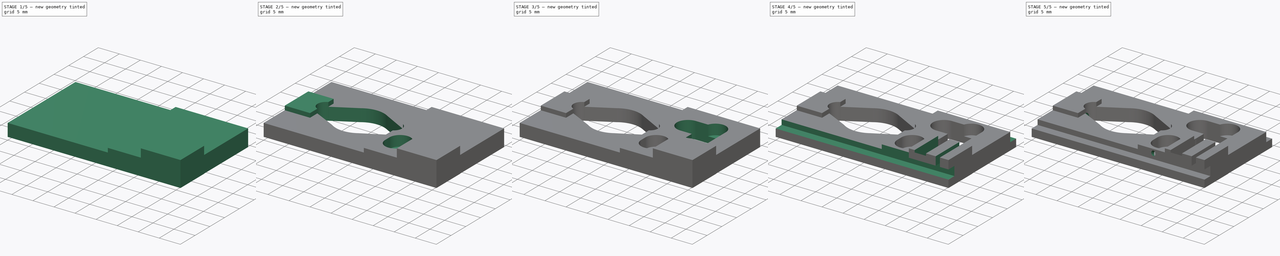
[diagram: build sequence overview — one tinted view per stage of 5, left to right]
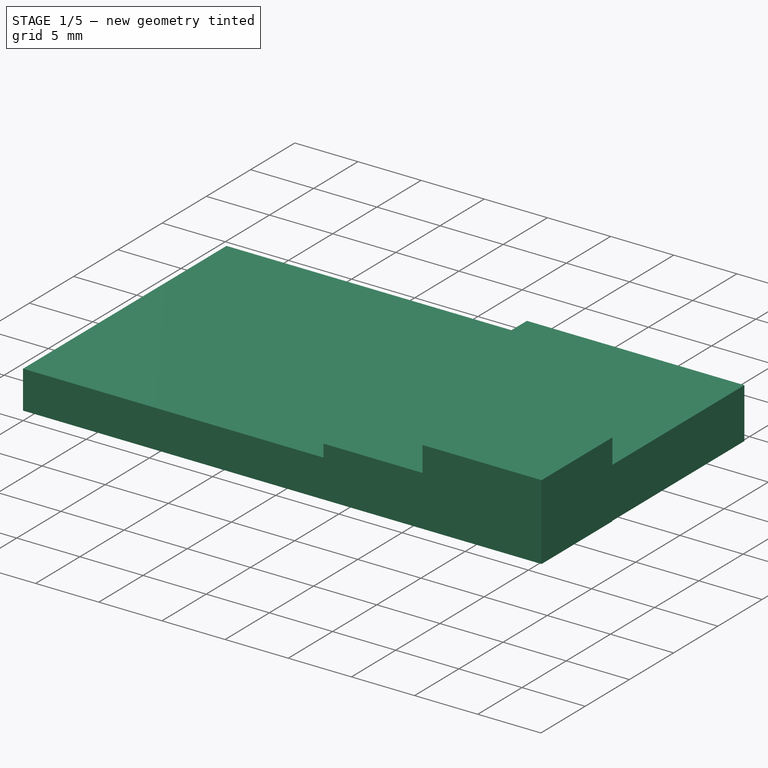
[diagram: stage 1 of 5 — iso view after this stage's code; geometry added in this stage tinted green]
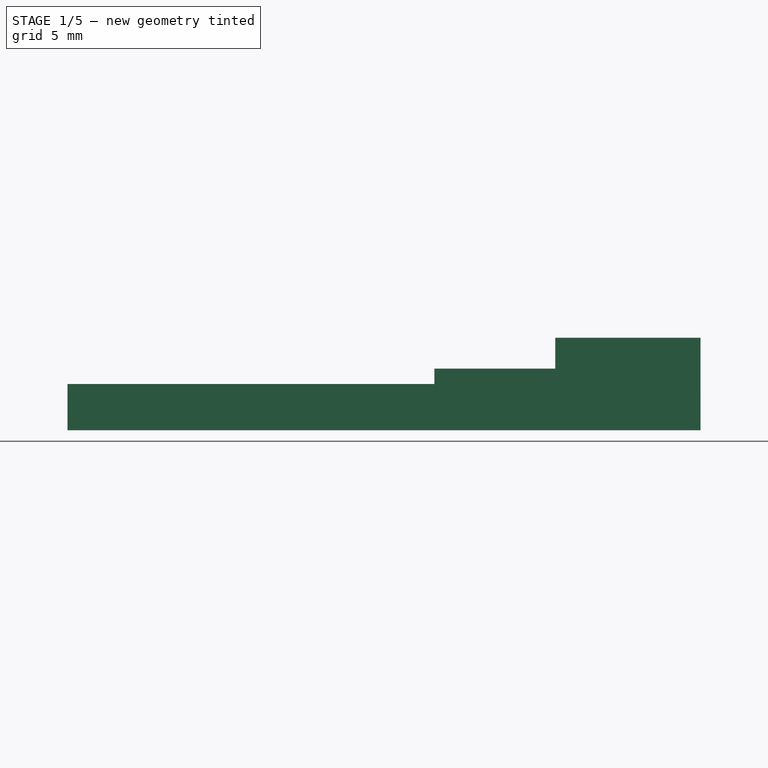
[diagram: stage 1 of 5 — front view after this stage's code; geometry added in this stage tinted green]
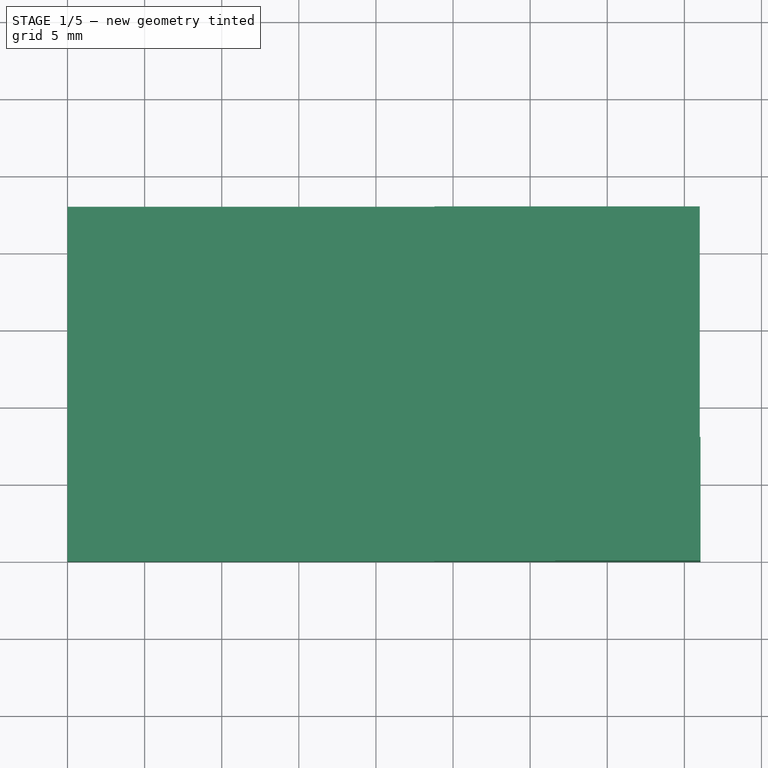
[diagram: stage 1 of 5 — top view after this stage's code; geometry added in this stage tinted green]
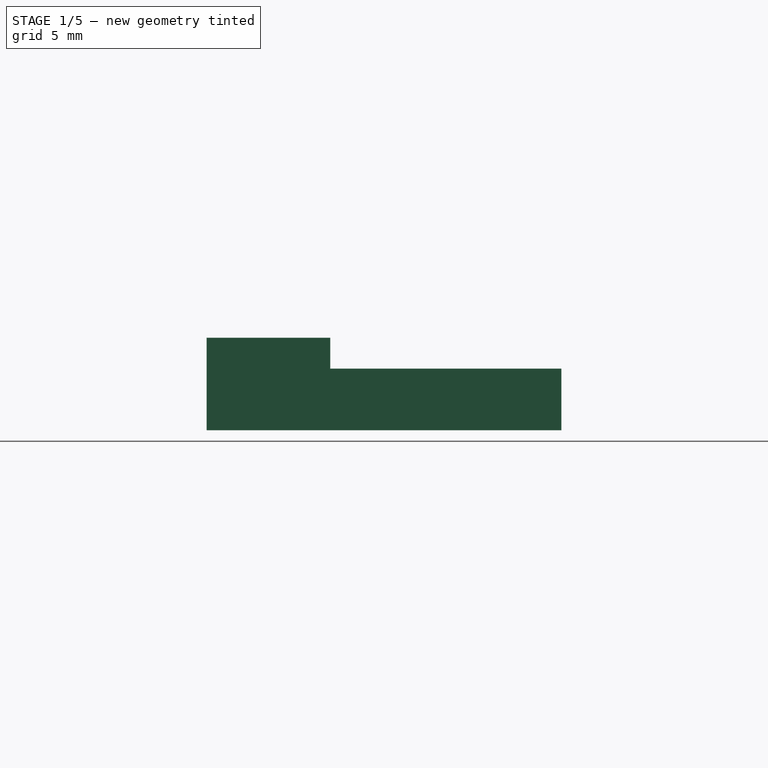
[diagram: stage 1 of 5 — right view after this stage's code; geometry added in this stage tinted green]
FCSTD DOCUMENT  (FreeCAD 0.17R13541 (Git))
Label: Slice_chamber
License: All rights reserved
LicenseURL: http://en.wikipedia.org/wiki/All_rights_reserved
objects: Sketcher::SketchObject×17, PartDesign::Pocket×13, PartDesign::Pad×4, PartDesign::Body×1
note: 52 computed .brp shape members not serialized (recipe doc carries the construction recipe); baked Part::Feature solids carry a one-line shape summary decoded from their .brp

FEATURE [Sketcher::SketchObject] Sketch007  label="top thick portion001"
  MapMode = 5
  Support = -> [XY_Plane]
  sketch-geometry (4):
    g0: LineSegment StartX=41 StartY=0 StartZ=0 EndX=23.7856 EndY=0 EndZ=0
    g1: LineSegment StartX=23.7856 StartY=0 StartZ=0 EndX=23.7856 EndY=23 EndZ=0
    g2: LineSegment StartX=23.7856 StartY=23 StartZ=0 EndX=41 EndY=23 EndZ=0
    g3: LineSegment StartX=41 StartY=23 StartZ=0 EndX=41 EndY=0 EndZ=0
  constraints (11):
    c: Coincident(g0,g1)
    c: Coincident(g1,g2)
    c: Coincident(g2,g3)
    c: Coincident(g3,g0)
    c: Horizontal(g0)
    c: Horizontal(g2)
    c: Vertical(g1)
    c: Vertical(g3)
    c: PointOnObject(g0,g-1)
    c: DistanceX(g-1,g0) = 41
    c: DistanceY(g0,g2) = 23
FEATURE [Sketcher::SketchObject] Sketch  label="main platform001"
  MapMode = 5
  Support = -> [XY_Plane]
  sketch-geometry (4):
    g0: LineSegment StartX=0 StartY=0 StartZ=0 EndX=41 EndY=0 EndZ=0
    g1: LineSegment StartX=41 StartY=0 StartZ=0 EndX=41 EndY=23 EndZ=0
    g2: LineSegment StartX=41 StartY=23 StartZ=0 EndX=0 EndY=23 EndZ=0
    g3: LineSegment StartX=0 StartY=23 StartZ=0 EndX=0 EndY=0 EndZ=0
  constraints (11):
    c: Coincident(g0,g1)
    c: Coincident(g1,g2)
    c: Coincident(g2,g3)
    c: Coincident(g3,g0)
    c: Horizontal(g0)
    c: Horizontal(g2)
    c: Vertical(g1)
    c: Vertical(g3)
    c: Coincident(g0,g-1)
    c: Distance(g3) = 23
    c: Distance(g0) = 41
FEATURE [Sketcher::SketchObject] Sketch001  label="main chamber001"
  MapMode = 5
  Support = -> [XY_Plane]
  sketch-geometry (9):
    g0: LineSegment StartX=-0.0748589 StartY=19.0149 StartZ=0 EndX=0 EndY=19.0149 EndZ=0
    g1: ArcOfCircle CenterX=14.7706 CenterY=11.5788 CenterZ=0 NormalX=0 NormalY=0 NormalZ=1 AngleXU=0 Radius=5.76 StartAngle=4.10172 EndAngle=5.26504
    g2: ArcOfCircle CenterX=6.76308 CenterY=11.4507 CenterZ=0 NormalX=0 NormalY=0 NormalZ=1 AngleXU=0 Radius=2 StartAngle=1.90701 EndAngle=4.23604
    g3: ArcOfCircle CenterX=22.7779 CenterY=11.5615 CenterZ=0 NormalX=0 NormalY=0 NormalZ=1 AngleXU=0 Radius=2 StartAngle=4.99605 EndAngle=7.50725
    g4: LineSegment StartX=6.10325 StartY=13.3387 StartZ=0 EndX=11.5461 EndY=16.3517 EndZ=0
    g5: LineSegment StartX=23.4575 StartY=13.4425 StartZ=0 EndX=17.8173 EndY=16.4671 EndZ=0
    g6: LineSegment StartX=5.846 StartY=9.67337 StartZ=0 EndX=11.4678 EndY=6.85982 EndZ=0
    g7: LineSegment StartX=17.7943 StartY=6.67626 StartZ=0 EndX=23.3376 EndY=9.64143 EndZ=0
    g8: ArcOfCircle CenterX=14.7706 CenterY=11.5788 CenterZ=0 NormalX=0 NormalY=0 NormalZ=1 AngleXU=0 Radius=5.76 StartAngle=1.01345 EndAngle=2.16495
  constraints (13):
    c: Radius(g3) = 2
    c: Radius(g1) = 5.76
    c: Radius(g2) = 2
    c: Coincident(g2,g4)
    c: Coincident(g2,g6)
    c: Coincident(g1,g6)
    c: Coincident(g8,g4)
    c: Equal(g1,g8)
    c: Coincident(g1,g7)
    c: Coincident(g8,g5)
    c: Coincident(g1,g8)
    c: Coincident(g3,g7)
    c: Coincident(g3,g5)
FEATURE [Sketcher::SketchObject] Sketch003  label="L connection001"
  MapMode = 5
  Support = -> [XY_Plane]
  sketch-geometry (8):
    g0: LineSegment StartX=23.9757 StartY=13.0541 StartZ=0 EndX=26.8012 EndY=13.0541 EndZ=0
    g1: LineSegment StartX=23.9757 StartY=10.0541 StartZ=0 EndX=23.9757 EndY=13.0541 EndZ=0
    g2: LineSegment StartX=27.5981 StartY=14.5267 StartZ=0 EndX=30.5981 EndY=14.5267 EndZ=0
    g3: LineSegment StartX=30.5981 StartY=14.5267 StartZ=0 EndX=30.5981 EndY=13.2925 EndZ=0
    g4: LineSegment StartX=27.5981 StartY=13.851 StartZ=0 EndX=27.5981 EndY=14.5267 EndZ=0
    g5: LineSegment StartX=27.3598 StartY=10.0541 StartZ=0 EndX=23.9757 EndY=10.0541 EndZ=0
    g6: ArcOfCircle CenterX=26.8012 CenterY=13.851 CenterZ=0 NormalX=0 NormalY=0 NormalZ=1 AngleXU=0 Radius=0.796926 StartAngle=4.71239 EndAngle=6.28319
    g7: ArcOfCircle CenterX=27.3598 CenterY=13.2925 CenterZ=0 NormalX=0 NormalY=0 NormalZ=1 AngleXU=0 Radius=3.23835 StartAngle=4.71239 EndAngle=6.28319
  constraints (16):
    c: Coincident(g5,g1)
    c: Coincident(g1,g0)
    c: Horizontal(g0)
    c: Vertical(g1)
    c: Coincident(g2,g3)
    c: Coincident(g4,g2)
    c: Horizontal(g2)
    c: Vertical(g3)
    c: DistanceY(g1,g1) = 3
    c: DistanceX(g2,g2) = 3
    c: Parallel(g5,g-1)
    c: Parallel(g4,g3)
    c: Tangent(g0,g6) = -1.5708
    c: Tangent(g4,g6) = -1.5708
    c: Tangent(g3,g7) = 1.5708
    c: Tangent(g5,g7) = 1.5708
FEATURE [Sketcher::SketchObject] Sketch006  label="small pit001"
  AttachmentOffset = pos=(0,0,1.5) rot=(0,0,1;0rad)
  MapMode = 5
  Placement = pos=(0,0,1.5) rot=(0,0,1;0rad)
  Support = -> [XY_Plane]
  sketch-geometry (4):
    g0: ArcOfCircle CenterX=27.5938 CenterY=6.84689 CenterZ=0 NormalX=0 NormalY=0 NormalZ=1 AngleXU=0 Radius=2.5 StartAngle=0 EndAngle=3.14159
    g1: ArcOfCircle CenterX=27.5938 CenterY=5.34689 CenterZ=0 NormalX=0 NormalY=0 NormalZ=1 AngleXU=0 Radius=2.5 StartAngle=3.14159 EndAngle=6.28319
    g2: LineSegment StartX=25.0938 StartY=6.84689 StartZ=0 EndX=25.0938 EndY=5.34689 EndZ=0
    g3: LineSegment StartX=30.0938 StartY=6.84689 StartZ=0 EndX=30.0938 EndY=5.34689 EndZ=0
  constraints (8):
    c: Tangent(g0,g3) = 1.5708
    c: Tangent(g0,g2) = -1.5708
    c: Tangent(g2,g1) = -1.5708
    c: Tangent(g3,g1) = 1.5708
    c: Vertical(g2)
    c: Equal(g0,g1)
    c: Radius(g0) = 2.5
    c: DistanceY(g1,g0) = 1.5
FEATURE [Sketcher::SketchObject] Sketch005  label="large pit connection001"
  AttachmentOffset = pos=(0,0,1.5) rot=(0,0,1;0rad)
  MapMode = 5
  Placement = pos=(0,0,1.5) rot=(0,0,1;0rad)
  Support = -> [XY_Plane]
  sketch-geometry (4):
    g0: ArcOfCircle CenterX=34.0487 CenterY=10.2511 CenterZ=0 NormalX=0 NormalY=0 NormalZ=1 AngleXU=0 Radius=2.5 StartAngle=3.14159 EndAngle=6.28319
    g1: ArcOfCircle CenterX=34.0487 CenterY=17.7511 CenterZ=0 NormalX=0 NormalY=0 NormalZ=1 AngleXU=0 Radius=2.5 StartAngle=0 EndAngle=3.14159
    g2: LineSegment StartX=36.5487 StartY=10.2511 StartZ=0 EndX=36.5487 EndY=17.7511 EndZ=0
    g3: LineSegment StartX=31.5487 StartY=10.2511 StartZ=0 EndX=31.5487 EndY=17.7511 EndZ=0
  constraints (8):
    c: Tangent(g0,g3) = 1.5708
    c: Tangent(g0,g2) = -1.5708
    c: Tangent(g2,g1) = -1.5708
    c: Tangent(g3,g1) = 1.5708
    c: Vertical(g2)
    c: Equal(g0,g1)
    c: Radius(g1) = 2.5
    c: DistanceY(g0,g1) = 7.5
FEATURE [Sketcher::SketchObject] Sketch002  label="large pit001"
  MapMode = 5
  Support = -> [XY_Plane]
  sketch-geometry (4):
    g0: ArcOfCircle CenterX=28.798 CenterY=15.9613 CenterZ=0 NormalX=0 NormalY=0 NormalZ=1 AngleXU=0 Radius=2.65132 StartAngle=1.5708 EndAngle=4.71239
    g1: ArcOfCircle CenterX=33.4783 CenterY=15.9613 CenterZ=0 NormalX=0 NormalY=0 NormalZ=1 AngleXU=0 Radius=2.65132 StartAngle=4.71239 EndAngle=7.85398
    g2: LineSegment StartX=28.798 StartY=13.31 StartZ=0 EndX=33.4783 EndY=13.31 EndZ=0
    g3: LineSegment StartX=28.798 StartY=18.6126 StartZ=0 EndX=33.4783 EndY=18.6126 EndZ=0
  constraints (6):
    c: Tangent(g0,g3) = 1.5708
    c: Tangent(g0,g2) = -1.5708
    c: Tangent(g2,g1) = -1.5708
    c: Tangent(g3,g1) = 1.5708
    c: Horizontal(g2)
    c: Equal(g0,g1)
FEATURE [Sketcher::SketchObject] Sketch004  label="large pit circle001"
  MapMode = 5
  Support = -> [XY_Plane]
  sketch-geometry (1):
    g0: Circle CenterX=34 CenterY=10.25 CenterZ=0 NormalX=0 NormalY=0 NormalZ=1 AngleXU=0 Radius=2.5
  constraints (1):
    c: Radius(g0) = 2.5
FEATURE [Sketcher::SketchObject] Sketch008  label="top outlet001"
  MapMode = 5
  Support = -> [XY_Plane]
  sketch-geometry (4):
    g0: LineSegment StartX=31.6275 StartY=0 StartZ=0 EndX=41.0452 EndY=0 EndZ=0
    g1: LineSegment StartX=41.0452 StartY=0 StartZ=0 EndX=41.0452 EndY=8.01583 EndZ=0
    g2: LineSegment StartX=41.0452 StartY=8.01583 StartZ=0 EndX=31.6275 EndY=8.01583 EndZ=0
    g3: LineSegment StartX=31.6275 StartY=8.01583 StartZ=0 EndX=31.6275 EndY=0 EndZ=0
  constraints (9):
    c: Coincident(g0,g1)
    c: Coincident(g1,g2)
    c: Coincident(g2,g3)
    c: Coincident(g3,g0)
    c: Horizontal(g0)
    c: Horizontal(g2)
    c: Vertical(g1)
    c: Vertical(g3)
    c: PointOnObject(g0,g-1)
FEATURE [PartDesign::Pad] Pad  label="top outlet"
  Length = 6
  Length2 = 100
  Profile = -> Sketch008
  Type = 0
FEATURE [PartDesign::Pad] Pad001  label="top thick portion"
  BaseFeature = -> Pad
  Length = 4
  Length2 = 100
  Profile = -> Sketch007
  Type = 0
FEATURE [PartDesign::Pad] Pad002  label="main platform"
  BaseFeature = -> Pad001
  Length = 3
  Length2 = 100
  Profile = -> Sketch
  Type = 0
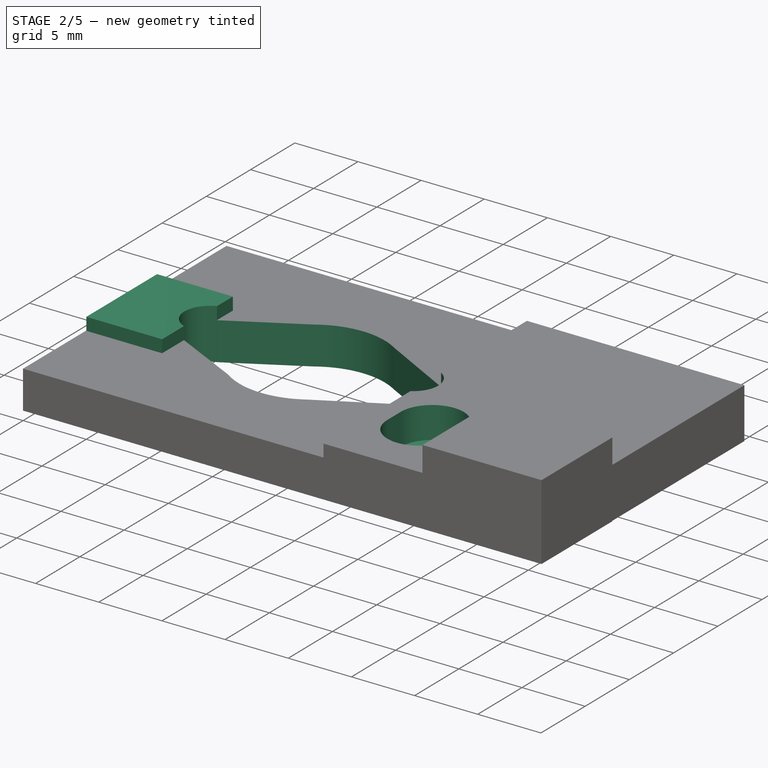
[diagram: stage 2 of 5 — iso view after this stage's code; geometry added in this stage tinted green]
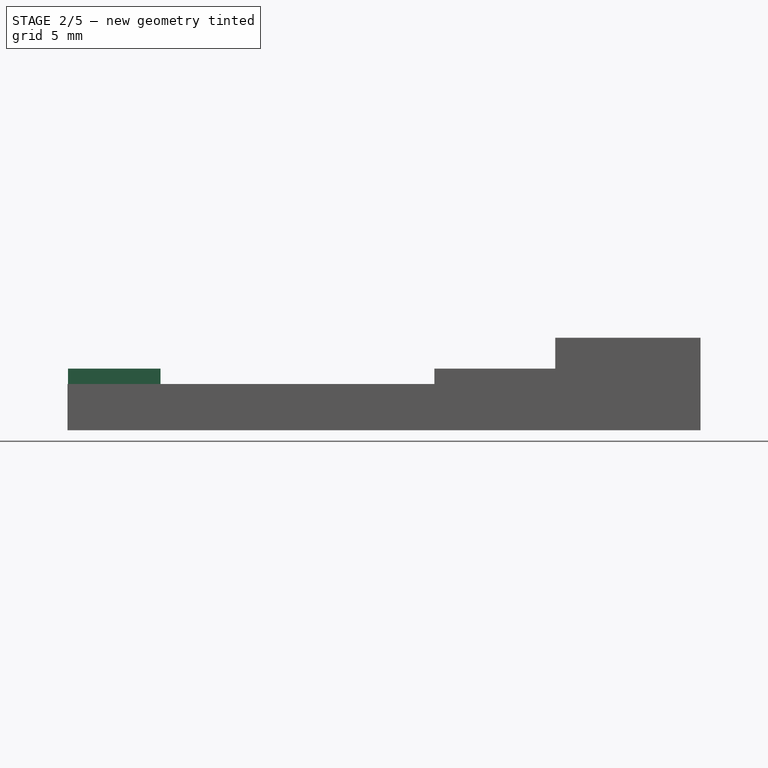
[diagram: stage 2 of 5 — front view after this stage's code; geometry added in this stage tinted green]
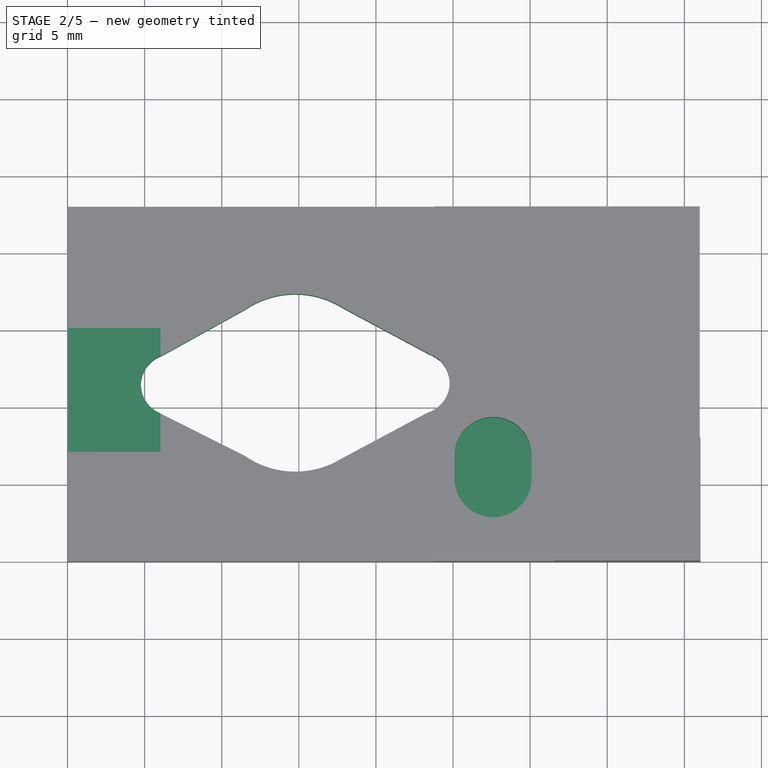
[diagram: stage 2 of 5 — top view after this stage's code; geometry added in this stage tinted green]
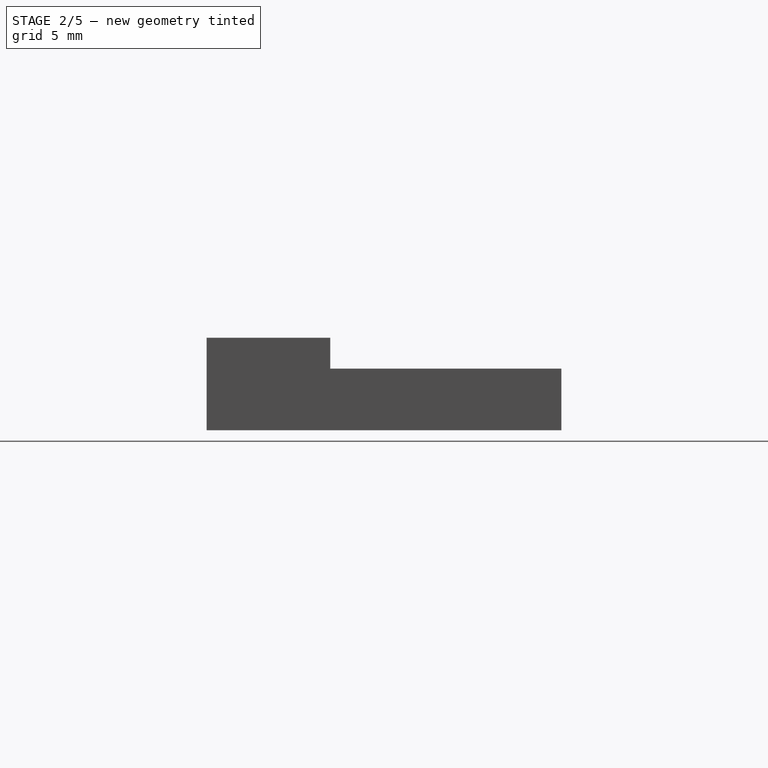
[diagram: stage 2 of 5 — right view after this stage's code; geometry added in this stage tinted green]
FEATURE [Sketcher::SketchObject] Sketch009  label="tail end padding001"
  MapMode = 5
  Support = -> [XY_Plane]
  sketch-geometry (4):
    g0: LineSegment StartX=0.0299415 StartY=15.1135 StartZ=0 EndX=6.02994 EndY=15.1135 EndZ=0
    g1: LineSegment StartX=6.02994 StartY=15.1135 StartZ=0 EndX=6.02994 EndY=7.1135 EndZ=0
    g2: LineSegment StartX=6.02994 StartY=7.1135 StartZ=0 EndX=0.0299415 EndY=7.1135 EndZ=0
    g3: LineSegment StartX=0.0299415 StartY=7.1135 StartZ=0 EndX=0.0299415 EndY=15.1135 EndZ=0
  constraints (10):
    c: Coincident(g0,g1)
    c: Coincident(g1,g2)
    c: Coincident(g2,g3)
    c: Coincident(g3,g0)
    c: Horizontal(g0)
    c: Horizontal(g2)
    c: Vertical(g1)
    c: Vertical(g3)
    c: DistanceX(g2,g1) = 6
    c: Distance(g1) = 8
FEATURE [PartDesign::Pad] Pad003  label="tail end padding"
  BaseFeature = -> Pad002
  Length = 4
  Length2 = 100
  Profile = -> Sketch009
  Type = 0
FEATURE [PartDesign::Pocket] Pocket  label="L connection"
  BaseFeature = -> Pad003
  Length = 1.5
  Length2 = 100
  Profile = -> Sketch003
  Reversed = true
  Type = 0
FEATURE [PartDesign::Pocket] Pocket001  label="main chamber"
  BaseFeature = -> Pocket
  Length = 5
  Length2 = 100
  Profile = -> Sketch001
  Reversed = true
  Type = 0
FEATURE [PartDesign::Pocket] Pocket002  label="small pit"
  BaseFeature = -> Pocket001
  Length = 5
  Length2 = 100
  Profile = -> Sketch006
  Reversed = true
  Type = 0
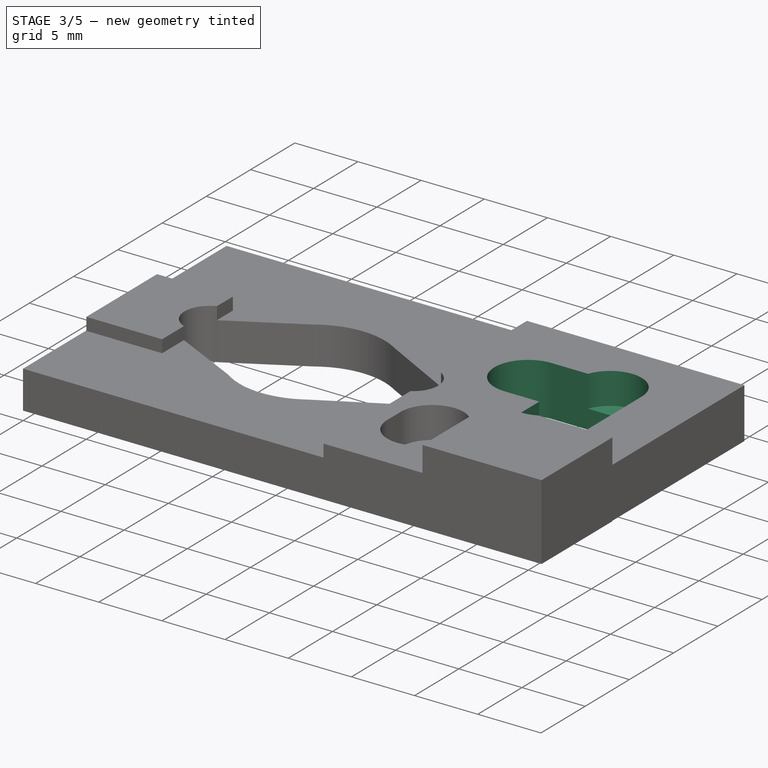
[diagram: stage 3 of 5 — iso view after this stage's code; geometry added in this stage tinted green]
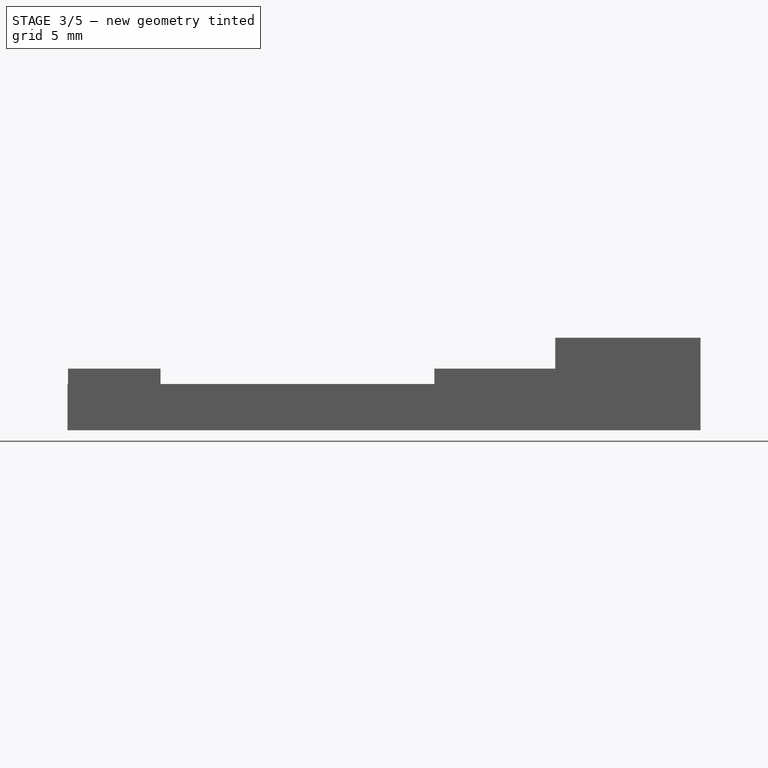
[diagram: stage 3 of 5 — front view after this stage's code; geometry added in this stage tinted green]
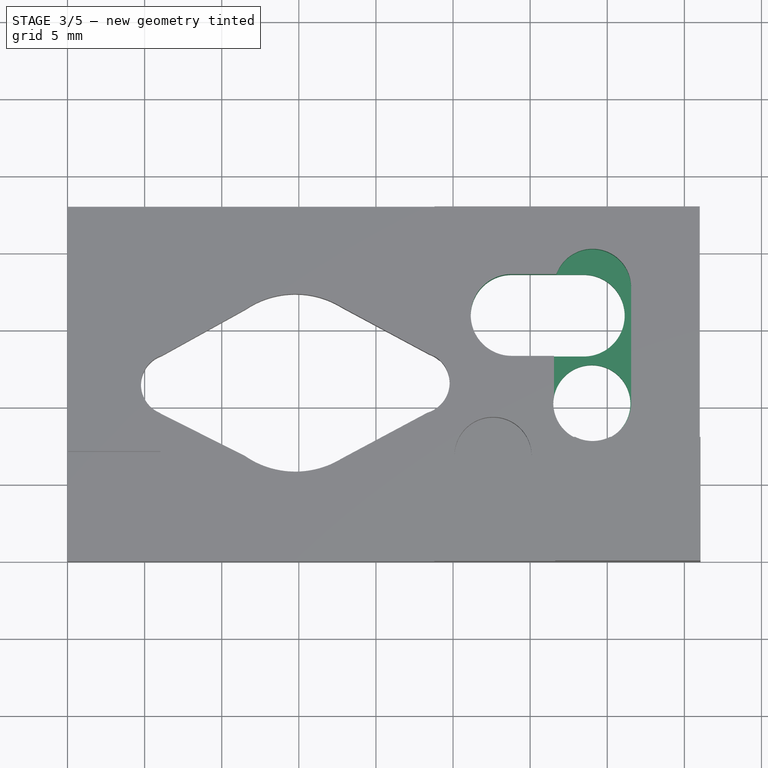
[diagram: stage 3 of 5 — top view after this stage's code; geometry added in this stage tinted green]
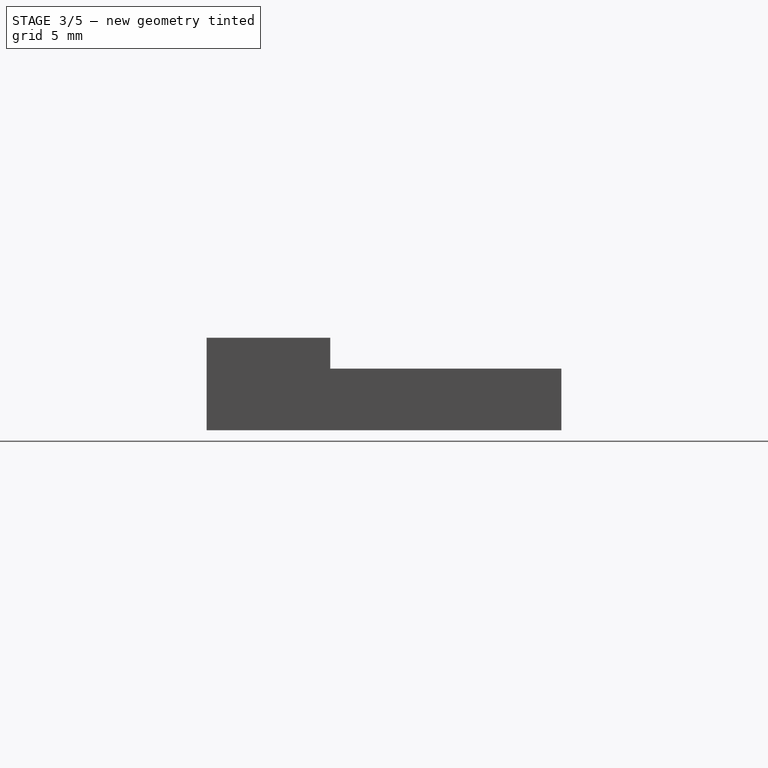
[diagram: stage 3 of 5 — right view after this stage's code; geometry added in this stage tinted green]
FEATURE [PartDesign::Pocket] Pocket003  label="large pit connection"
  BaseFeature = -> Pocket002
  Length = 5
  Length2 = 100
  Profile = -> Sketch005
  Reversed = true
  Type = 0
FEATURE [PartDesign::Pocket] Pocket004  label="large pit"
  BaseFeature = -> Pocket003
  Length = 5
  Length2 = 100
  Profile = -> Sketch002
  Reversed = true
  Type = 0
FEATURE [PartDesign::Pocket] Pocket005  label="large pit circle"
  BaseFeature = -> Pocket004
  Length = 5
  Length2 = 100
  Profile = -> Sketch004
  Reversed = true
  Type = 0
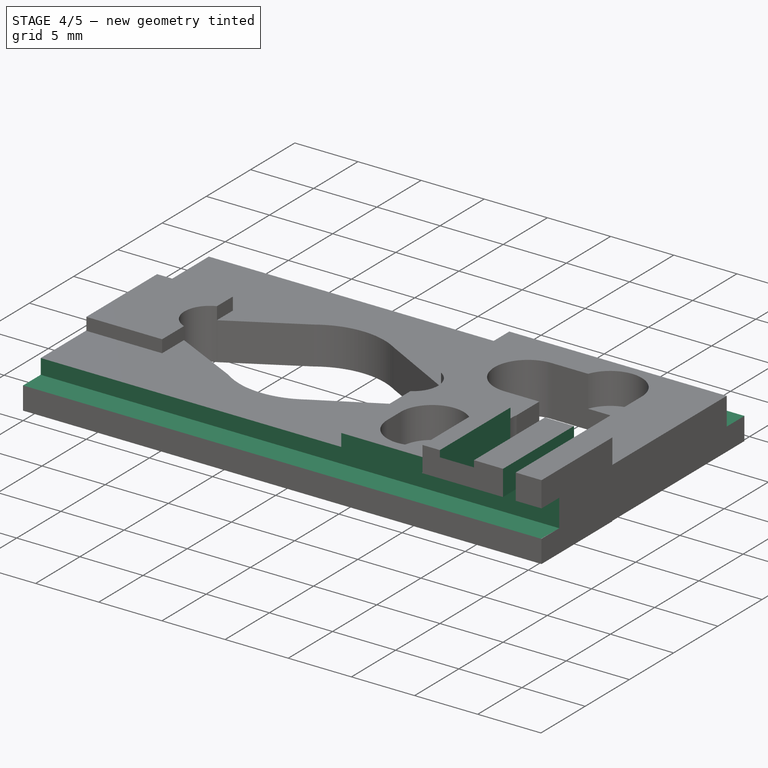
[diagram: stage 4 of 5 — iso view after this stage's code; geometry added in this stage tinted green]
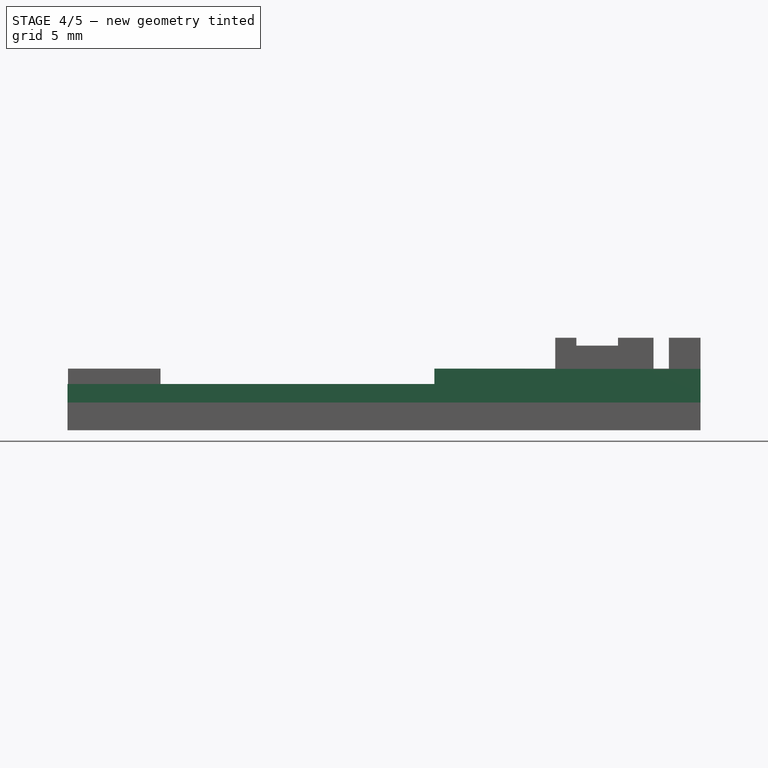
[diagram: stage 4 of 5 — front view after this stage's code; geometry added in this stage tinted green]
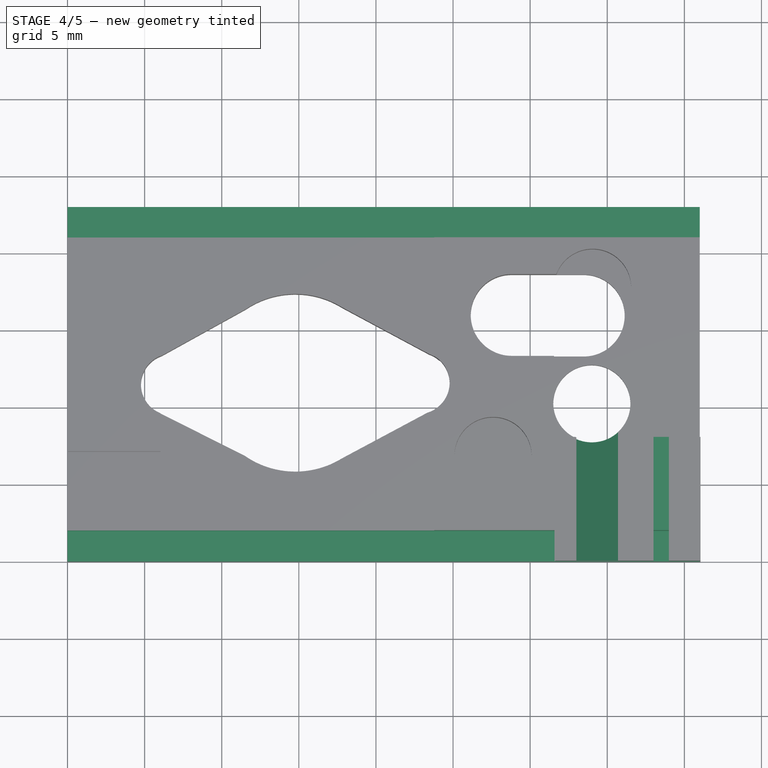
[diagram: stage 4 of 5 — top view after this stage's code; geometry added in this stage tinted green]
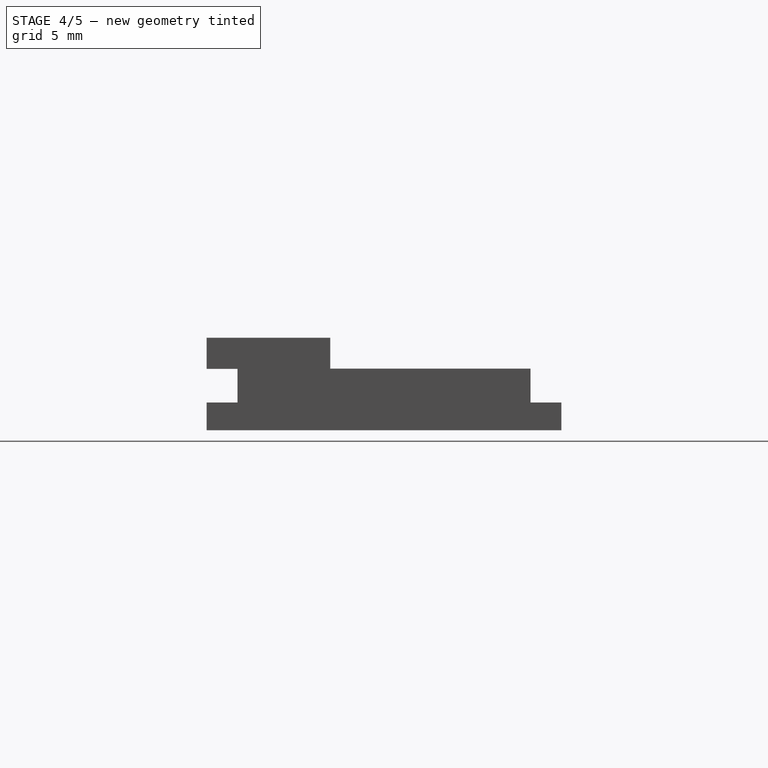
[diagram: stage 4 of 5 — right view after this stage's code; geometry added in this stage tinted green]
FEATURE [Sketcher::SketchObject] Sketch010  label="edge grooves001"
  AttachmentOffset = pos=(0,0,1.8) rot=(0,0,1;0rad)
  MapMode = 5
  Placement = pos=(0,0,1.8) rot=(0,0,1;0rad)
  Support = -> [XY_Plane]
  sketch-geometry (8):
    g0: LineSegment StartX=0 StartY=23 StartZ=0 EndX=41 EndY=23 EndZ=0
    g1: LineSegment StartX=41 StartY=23 StartZ=0 EndX=41 EndY=21 EndZ=0
    g2: LineSegment StartX=41 StartY=21 StartZ=0 EndX=0 EndY=21 EndZ=0
    g3: LineSegment StartX=0 StartY=21 StartZ=0 EndX=0 EndY=23 EndZ=0
    g4: LineSegment StartX=0 StartY=0 StartZ=0 EndX=31.58 EndY=0 EndZ=0
    g5: LineSegment StartX=31.58 StartY=0 StartZ=0 EndX=31.58 EndY=2 EndZ=0
    g6: LineSegment StartX=31.58 StartY=2 StartZ=0 EndX=0 EndY=2 EndZ=0
    g7: LineSegment StartX=0 StartY=2 StartZ=0 EndX=0 EndY=0 EndZ=0
  constraints (23):
    c: Coincident(g0,g1)
    c: Coincident(g1,g2)
    c: Coincident(g2,g3)
    c: Coincident(g3,g0)
    c: Horizontal(g0)
    c: Horizontal(g2)
    c: Vertical(g1)
    c: Vertical(g3)
    c: PointOnObject(g0,g-2)
    c: DistanceY(g-1,g0) = 23
    c: DistanceY(g2,g0) = 2
    c: Coincident(g4,g5)
    c: Coincident(g5,g6)
    c: Coincident(g6,g7)
    c: Coincident(g7,g4)
    c: Horizontal(g4)
    c: Horizontal(g6)
    c: Vertical(g5)
    c: Vertical(g7)
    c: Coincident(g4,g-1)
    c: DistanceX(g0,g0) = 41
    c: DistanceX(g4,g4) = 31.58
    c: DistanceY(g4,g5) = 2
FEATURE [PartDesign::Pocket] Pocket006  label="edge grooves"
  BaseFeature = -> Pocket005
  Length = 5
  Length2 = 100
  Profile = -> Sketch010
  Reversed = true
  Type = 0
FEATURE [Sketcher::SketchObject] Sketch012  label="inlet hole001"
  AttachmentOffset = pos=(0,0,5) rot=(1,0,0;0.349066rad)
  MapMode = 5
  Placement = pos=(5,-1e-12,1e-12) rot=(0.633687,0.633687,0.443713;2.30637rad)
  Support = -> [YZ_Plane]
  sketch-geometry (1):
    g0: Circle CenterX=11.55 CenterY=1 CenterZ=0 NormalX=0 NormalY=0 NormalZ=1 AngleXU=0 Radius=0.8
  constraints (2):
    c: Radius(g0) = 0.8
    c: DistanceX(g-1,g0) = 11.55
FEATURE [Sketcher::SketchObject] Sketch013  label="Holder slot extension001"
  AttachmentOffset = pos=(0,0,31.58) rot=(0,0,1;0rad)
  MapMode = 5
  Placement = pos=(31.58,-4e-12,4e-12) rot=(0.57735,0.57735,0.57735;2.0944rad)
  Support = -> [YZ_Plane]
  sketch-geometry (4):
    g0: LineSegment StartX=0 StartY=1.8 StartZ=0 EndX=2 EndY=1.8 EndZ=0
    g1: LineSegment StartX=2 StartY=1.8 StartZ=0 EndX=2 EndY=3.98 EndZ=0
    g2: LineSegment StartX=2 StartY=3.98 StartZ=0 EndX=0 EndY=3.98 EndZ=0
    g3: LineSegment StartX=0 StartY=3.98 StartZ=0 EndX=0 EndY=1.8 EndZ=0
  constraints (12):
    c: Coincident(g0,g1)
    c: Coincident(g1,g2)
    c: Coincident(g2,g3)
    c: Coincident(g3,g0)
    c: Horizontal(g2)
    c: Vertical(g1)
    c: Vertical(g3)
    c: Horizontal(g0)
    c: DistanceY(g-1,g0) = 1.8
    c: DistanceY(g-1,g2) = 3.98
    c: DistanceX(g0,g0) = 2
    c: DistanceX(g-1,g0) = 0
FEATURE [PartDesign::Pocket] Pocket007  label="Holder slot extension"
  BaseFeature = -> Pocket006
  Length = 10
  Length2 = 100
  Profile = -> Sketch013
  Reversed = true
  Type = 0
FEATURE [Sketcher::SketchObject] Sketch014  label="vaccum drain001"
  AttachmentOffset = pos=(0,0,2.5) rot=(-1,0,0;0.523599rad)
  MapMode = 5
  Placement = pos=(0,-2.5,0) rot=(1,0,0;1.0472rad)
  Support = -> [XZ_Plane]
  sketch-geometry (4):
    g0: LineSegment StartX=33 StartY=6 StartZ=0 EndX=35.7 EndY=6 EndZ=0
    g1: LineSegment StartX=35.7 StartY=6 StartZ=0 EndX=35.7 EndY=11 EndZ=0
    g2: LineSegment StartX=35.7 StartY=11 StartZ=0 EndX=33 EndY=11 EndZ=0
    g3: LineSegment StartX=33 StartY=11 StartZ=0 EndX=33 EndY=6 EndZ=0
  constraints (12):
    c: Coincident(g0,g1)
    c: Coincident(g1,g2)
    c: Coincident(g2,g3)
    c: Coincident(g3,g0)
    c: Horizontal(g0)
    c: Horizontal(g2)
    c: Vertical(g1)
    c: Vertical(g3)
    c: DistanceX(g0,g1) = 2.7
    c: DistanceY(g0,g2) = 5
    c: DistanceX(g-1,g0) = 33
    c: DistanceY(g-1,g0) = 6
FEATURE [PartDesign::Pocket] Pocket008  label="vaccum drain"
  BaseFeature = -> Pocket007
  Length = 10
  Length2 = 10
  Profile = -> Sketch014
  Type = 4
FEATURE [Sketcher::SketchObject] Sketch015
  MapMode = 5
  Placement = pos=(0,0,0) rot=(1,0,0;1.5708rad)
  Support = -> [XZ_Plane]
  sketch-geometry (4):
    g0: LineSegment StartX=38 StartY=3.95857 StartZ=0 EndX=39 EndY=3.95857 EndZ=0
    g1: LineSegment StartX=39 StartY=3.95857 StartZ=0 EndX=39 EndY=6.05857 EndZ=0
    g2: LineSegment StartX=39 StartY=6.05857 StartZ=0 EndX=38 EndY=6.05857 EndZ=0
    g3: LineSegment StartX=38 StartY=6.05857 StartZ=0 EndX=38 EndY=3.95857 EndZ=0
  constraints (11):
    c: Coincident(g0,g1)
    c: Coincident(g1,g2)
    c: Coincident(g2,g3)
    c: Coincident(g3,g0)
    c: Horizontal(g0)
    c: Horizontal(g2)
    c: Vertical(g1)
    c: Vertical(g3)
    c: DistanceX(g0,g1) = 1
    c: DistanceY(g0,g2) = 2.1
    c: DistanceX(g0) = 38
FEATURE [PartDesign::Pocket] Pocket009
  BaseFeature = -> Pocket008
  Length = 8.05
  Length2 = 100
  Profile = -> Sketch015
  Type = 0
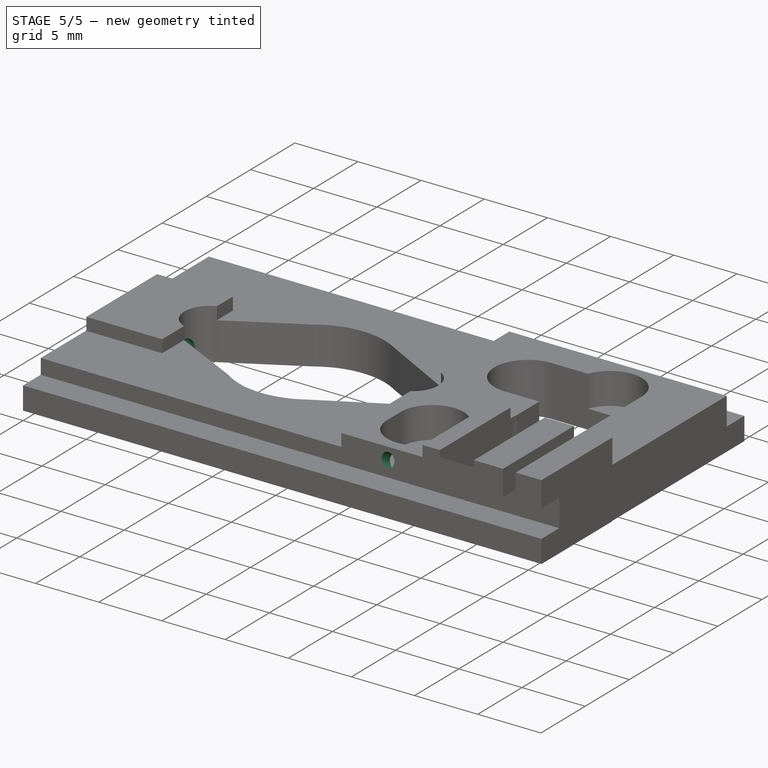
[diagram: stage 5 of 5 — iso view after this stage's code; geometry added in this stage tinted green]
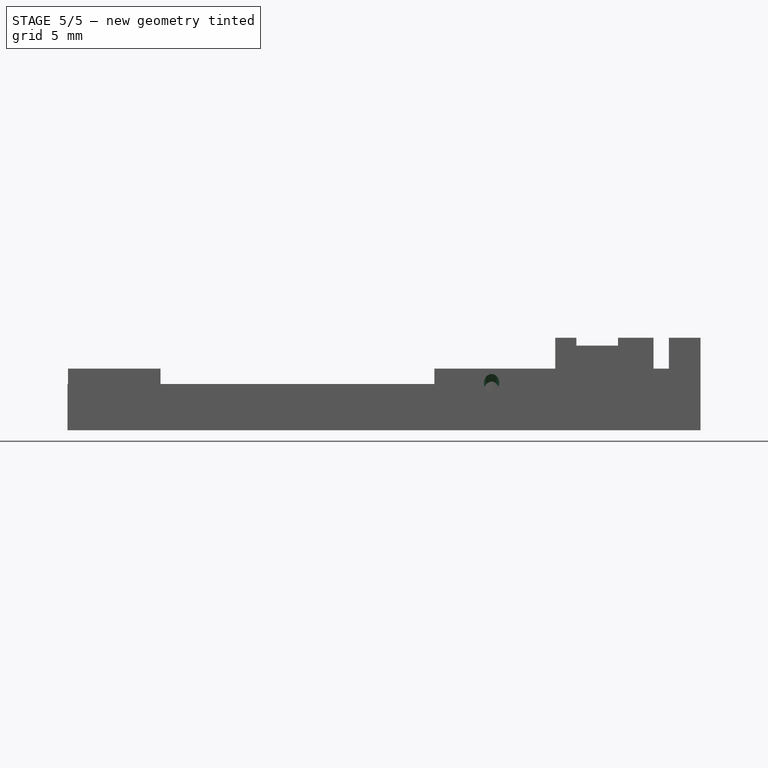
[diagram: stage 5 of 5 — front view after this stage's code; geometry added in this stage tinted green]
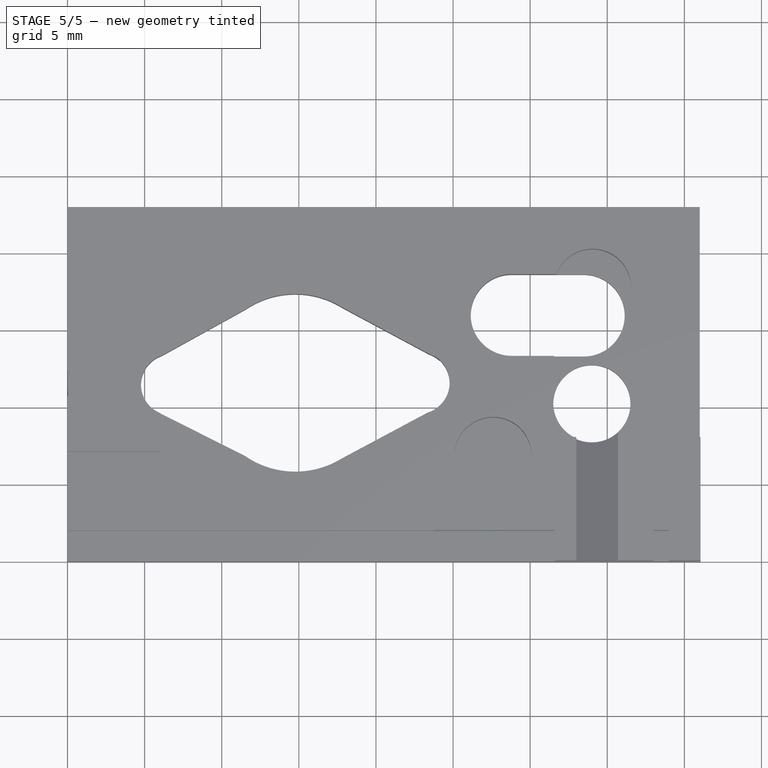
[diagram: stage 5 of 5 — top view after this stage's code; geometry added in this stage tinted green]
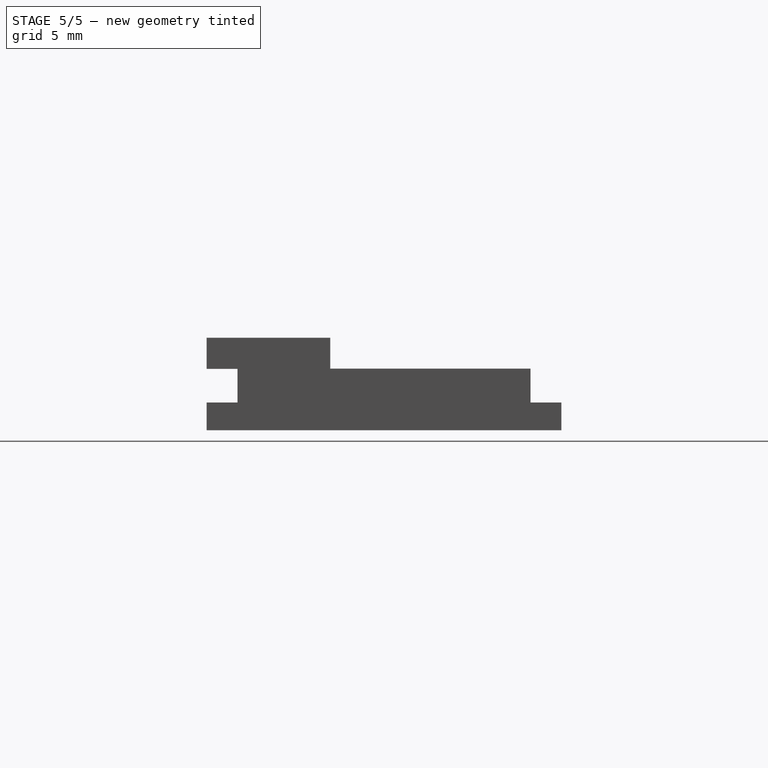
[diagram: stage 5 of 5 — right view after this stage's code; geometry added in this stage tinted green]
FEATURE [PartDesign::Pocket] Pocket010  label="inlet hole"
  BaseFeature = -> Pocket009
  Length = 8
  Length2 = 100
  Profile = -> Sketch012
  Type = 0
FEATURE [Sketcher::SketchObject] Sketch016
  AttachmentOffset = pos=(0,0.2,-1) rot=(-1,0,0;0.523599rad)
  MapMode = 5
  Placement = pos=(0,1,0.2) rot=(1,0,0;1.0472rad)
  Support = -> [XZ_Plane]
  sketch-geometry (1):
    g0: Circle CenterX=27.4973 CenterY=2.98296 CenterZ=0 NormalX=0 NormalY=0 NormalZ=1 AngleXU=0 Radius=0.5
  constraints (1):
    c: Radius(g0) = 0.5
FEATURE [PartDesign::Pocket] Pocket011
  BaseFeature = -> Pocket010
  Length = 2
  Length2 = 100
  Midplane = true
  Profile = -> Sketch016
  Type = 0
FEATURE [Sketcher::SketchObject] Sketch017  label="coverslip_holder001"
  MapMode = 5
  Support = -> [XY_Plane]
  sketch-geometry (8):
    g0: LineSegment StartX=1.5 StartY=1.5 StartZ=0 EndX=39.5 EndY=1.5 EndZ=0
    g1: LineSegment StartX=39.5 StartY=1.5 StartZ=0 EndX=39.5 EndY=21.5 EndZ=0
    g2: LineSegment StartX=39.5 StartY=21.5 StartZ=0 EndX=1.5 EndY=21.5 EndZ=0
    g3: LineSegment StartX=1.5 StartY=21.5 StartZ=0 EndX=1.5 EndY=1.5 EndZ=0
    g4: LineSegment StartX=3 StartY=20 StartZ=0 EndX=38 EndY=20 EndZ=0
    g5: LineSegment StartX=38 StartY=20 StartZ=0 EndX=38 EndY=3 EndZ=0
    g6: LineSegment StartX=38 StartY=3 StartZ=0 EndX=3 EndY=3 EndZ=0
    g7: LineSegment StartX=3 StartY=3 StartZ=0 EndX=3 EndY=20 EndZ=0
  constraints (24):
    c: Coincident(g0,g1)
    c: Coincident(g1,g2)
    c: Coincident(g2,g3)
    c: Coincident(g3,g0)
    c: Horizontal(g0)
    c: Horizontal(g2)
    c: Vertical(g1)
    c: Vertical(g3)
    c: DistanceY(g-1,g0) = 1.5
    c: DistanceX(g0,g0) = 38
    c: DistanceY(g0,g1) = 20
    c: DistanceX(g-1,g0) = 1.5
    c: Coincident(g4,g5)
    c: Coincident(g5,g6)
    c: Coincident(g6,g7)
    c: Coincident(g7,g4)
    c: Horizontal(g4)
    c: Horizontal(g6)
    c: Vertical(g5)
    c: Vertical(g7)
    c: DistanceX(g4,g1) = 1.5
    c: DistanceX(g2,g4) = 1.5
    c: DistanceY(g0,g5) = 1.5
    c: DistanceY(g4,g2) = 1.5
FEATURE [PartDesign::Pocket] Pocket012  label="coverslip_holder"
  BaseFeature = -> Pocket011
  Length = 0.5
  Length2 = 100
  Profile = -> Sketch017
  Reversed = true
  Type = 0
FEATURE [PartDesign::Body] Body
  Group = -> [Sketch007,Sketch,Sketch001,Sketch003,Sketch006,Sketch005,Sketch002,Sketch004,Sketch008,Pad,Pad001,Pad002,Sketch009,Pad003,Pocket,Pocket001,Pocket002,Pocket003,Pocket004,Pocket005,Sketch010,Pocket006,Sketch012,Sketch013,Pocket007,Sketch014,Pocket008,Sketch015,Pocket009,Pocket010,Sketch016,Pocket011,Sketch017,Pocket012]
  Origin = -> Origin
  Tip = -> Pocket012
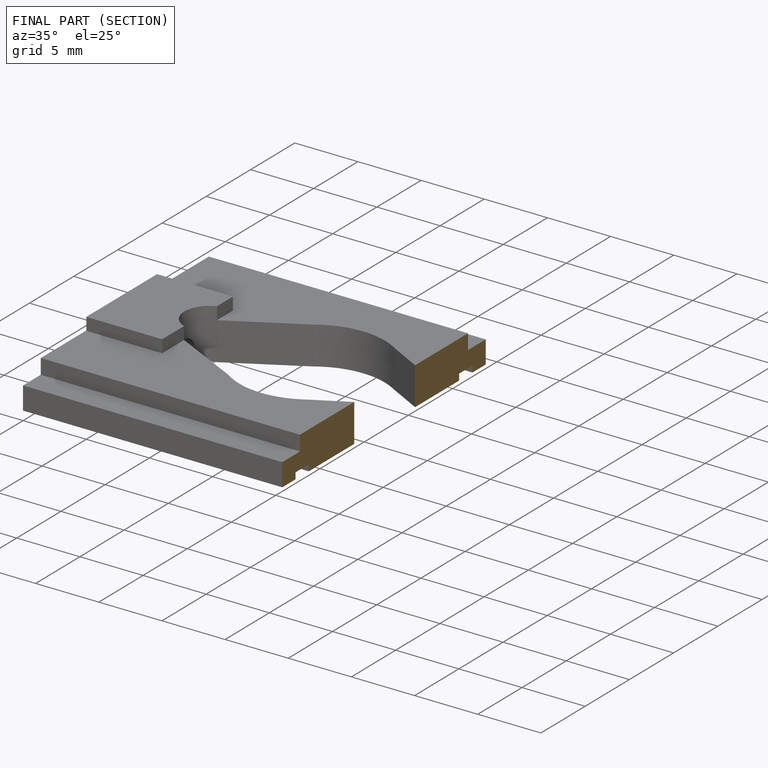
[diagram: finished part — half-section view (interior)]
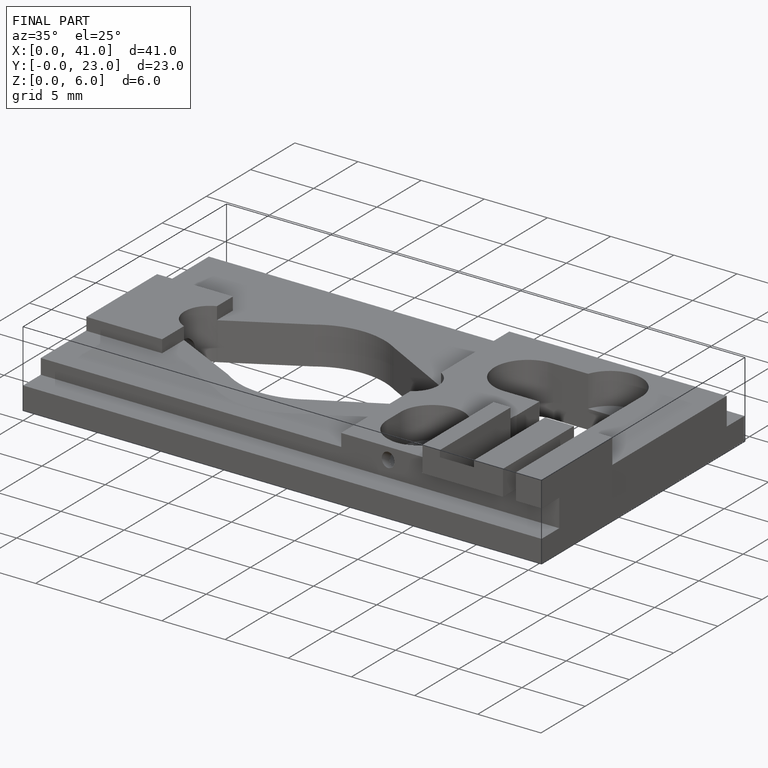
[diagram: finished part — iso view with bounding-box wireframe]
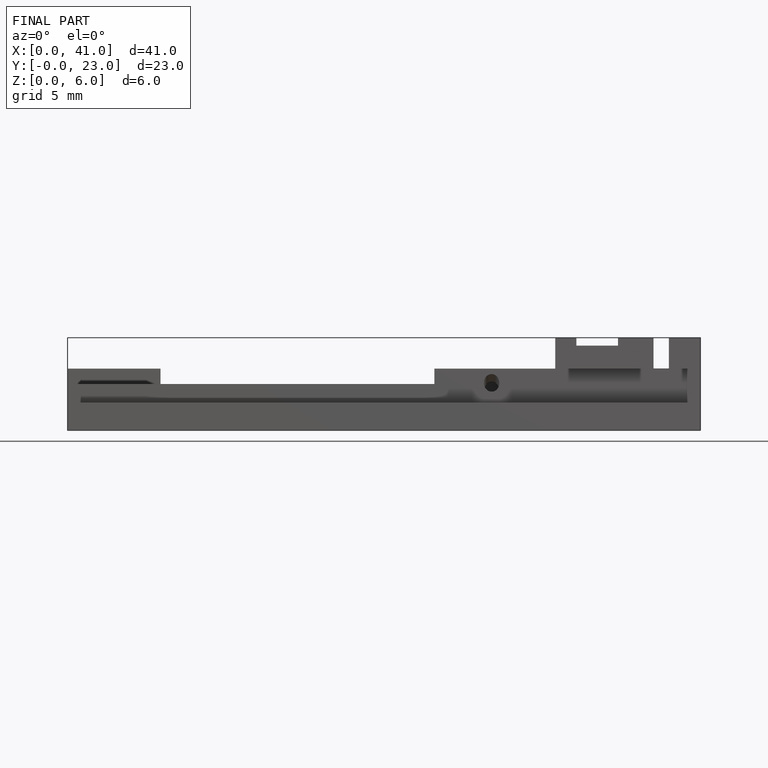
[diagram: finished part — front view with bounding-box wireframe]
